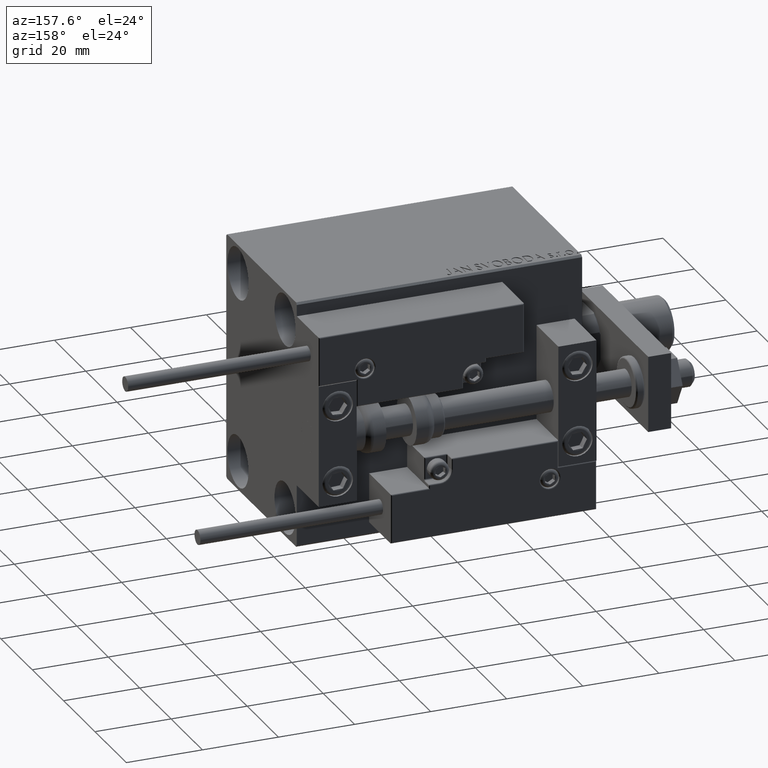
[diagram: clean part render]
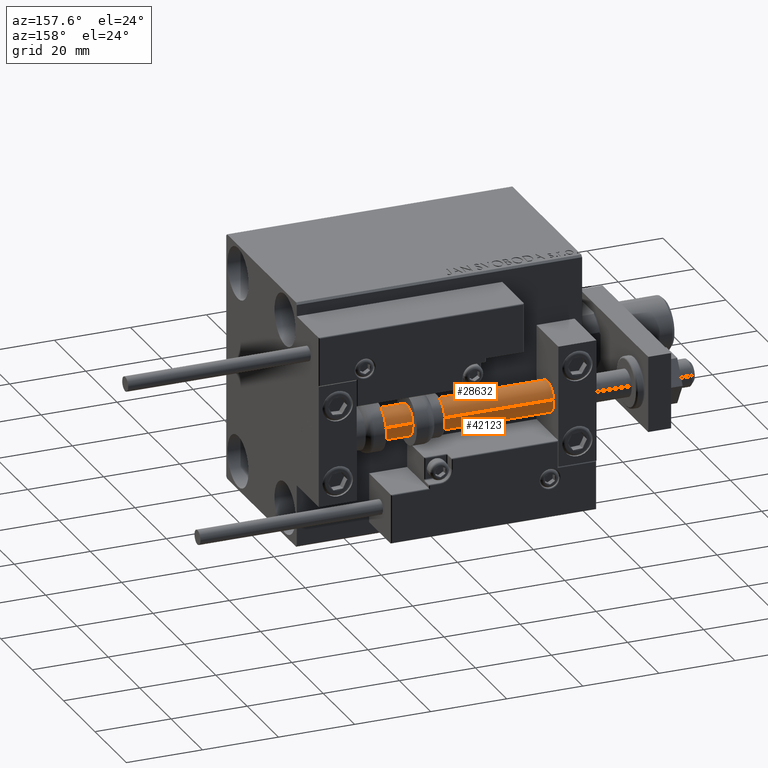
[diagram: same view with one multi-face feature highlighted, each face labeled with its STEP entity id]
A machine part, auxiliary view. The highlighted faces form ONE feature: a constant-radius fillet chain: 2 tangent blend faces with common blend radius 4 mm. The faces share edges in the B-rep.
Their STEP definitions:
[1] entity #42123 (Cylinder):
#3448 = DIRECTION ( 'NONE',  ( 1.000000000000000000, 0.000000000000000000, 0.000000000000000000 ) ) ;
#3954 = DIRECTION ( 'NONE',  ( -0.000000000000000000, -0.000000000000000000, 1.000000000000000000 ) ) ;
#4168 = VERTEX_POINT ( 'NONE', #49120 ) ;
#5979 = CYLINDRICAL_SURFACE ( 'NONE', #9482, 4.000000000000000000 ) ;
#6658 = ORIENTED_EDGE ( 'NONE', *, *, #28390, .F. ) ;
#7713 = CARTESIAN_POINT ( 'NONE',  ( -4.000000000000000000, 0.000000000000000000, 75.00000000000000000 ) ) ;
#8230 = DIRECTION ( 'NONE',  ( -0.000000000000000000, -0.000000000000000000, -1.000000000000000000 ) ) ;
#9482 = AXIS2_PLACEMENT_3D ( 'NONE', #21641, #20291, #20546 ) ;
#10101 = VECTOR ( 'NONE', #8230, 1000.000000000000000 ) ;
#11306 = CARTESIAN_POINT ( 'NONE',  ( -4.000000000000000000, 0.000000000000000000, 2.000000000000029310 ) ) ;
#12098 = LINE ( 'NONE', #7713, #10101 ) ;
#15366 = CIRCLE ( 'NONE', #47379, 4.000000000000000000 ) ;
#18832 = EDGE_LOOP ( 'NONE', ( #6658, #43300, #40815, #28547 ) ) ;
#18980 = CARTESIAN_POINT ( 'NONE',  ( 0.000000000000000000, 0.000000000000000000, 75.00000000000000000 ) ) ;
#19230 = DIRECTION ( 'NONE',  ( 1.000000000000000000, 0.000000000000000000, 0.000000000000000000 ) ) ;
#19507 = VERTEX_POINT ( 'NONE', #11306 ) ;
#20291 = DIRECTION ( 'NONE',  ( -0.000000000000000000, -0.000000000000000000, -1.000000000000000000 ) ) ;
#20546 = DIRECTION ( 'NONE',  ( -1.000000000000000000, 0.000000000000000000, 0.000000000000000000 ) ) ;
#20794 = EDGE_CURVE ( 'NONE', #50587, #19507, #12098, .T. ) ;
#21641 = CARTESIAN_POINT ( 'NONE',  ( 0.000000000000000000, 0.000000000000000000, 75.00000000000000000 ) ) ;
#22566 = VECTOR ( 'NONE', #48488, 1000.000000000000000 ) ;
#23930 = EDGE_CURVE ( 'NONE', #50587, #44798, #30592, .T. ) ;
#24059 = AXIS2_PLACEMENT_3D ( 'NONE', #18980, #46184, #19230 ) ;
#25497 = FACE_OUTER_BOUND ( 'NONE', #18832, .T. ) ;
#27543 = CARTESIAN_POINT ( 'NONE',  ( -4.000000000000000000, 0.000000000000000000, 75.00000000000000000 ) ) ;
#28390 = EDGE_CURVE ( 'NONE', #44798, #4168, #40261, .T. ) ;
#28547 = ORIENTED_EDGE ( 'NONE', *, *, #46493, .T. ) ;
#30592 = CIRCLE ( 'NONE', #24059, 4.000000000000000000 ) ;
#33854 = CARTESIAN_POINT ( 'NONE',  ( 4.000000000000000000, 4.898587196589412829E-16, 75.00000000000000000 ) ) ;
#38600 = CARTESIAN_POINT ( 'NONE',  ( 0.000000000000000000, 0.000000000000000000, 2.000000000000029310 ) ) ;
#40261 = LINE ( 'NONE', #49407, #22566 ) ;
#40815 = ORIENTED_EDGE ( 'NONE', *, *, #20794, .T. ) ;
#42123 = ADVANCED_FACE ( 'NONE', ( #25497 ), #5979, .T. ) ;
#43300 = ORIENTED_EDGE ( 'NONE', *, *, #23930, .F. ) ;
#44798 = VERTEX_POINT ( 'NONE', #33854 ) ;
#46184 = DIRECTION ( 'NONE',  ( 0.000000000000000000, 0.000000000000000000, 1.000000000000000000 ) ) ;
#46493 = EDGE_CURVE ( 'NONE', #19507, #4168, #15366, .T. ) ;
#47379 = AXIS2_PLACEMENT_3D ( 'NONE', #38600, #3954, #3448 ) ;
#48488 = DIRECTION ( 'NONE',  ( -0.000000000000000000, -0.000000000000000000, -1.000000000000000000 ) ) ;
#49120 = CARTESIAN_POINT ( 'NONE',  ( 4.000000000000000000, 4.898587196589412829E-16, 2.000000000000029310 ) ) ;
#49407 = CARTESIAN_POINT ( 'NONE',  ( 4.000000000000000000, 4.898587196589412829E-16, 75.00000000000000000 ) ) ;
#50587 = VERTEX_POINT ( 'NONE', #27543 ) ;
[2] entity #28632 (Cylinder):
#4168 = VERTEX_POINT ( 'NONE', #49120 ) ;
#5449 = CARTESIAN_POINT ( 'NONE',  ( 0.000000000000000000, 0.000000000000000000, 75.00000000000000000 ) ) ;
#6708 = CYLINDRICAL_SURFACE ( 'NONE', #50438, 4.000000000000000000 ) ;
#7713 = CARTESIAN_POINT ( 'NONE',  ( -4.000000000000000000, 0.000000000000000000, 75.00000000000000000 ) ) ;
#8230 = DIRECTION ( 'NONE',  ( -0.000000000000000000, -0.000000000000000000, -1.000000000000000000 ) ) ;
#10101 = VECTOR ( 'NONE', #8230, 1000.000000000000000 ) ;
#10561 = DIRECTION ( 'NONE',  ( -0.000000000000000000, -0.000000000000000000, -1.000000000000000000 ) ) ;
#11306 = CARTESIAN_POINT ( 'NONE',  ( -4.000000000000000000, 0.000000000000000000, 2.000000000000029310 ) ) ;
#12098 = LINE ( 'NONE', #7713, #10101 ) ;
#12599 = CIRCLE ( 'NONE', #40466, 4.000000000000000000 ) ;
#13695 = AXIS2_PLACEMENT_3D ( 'NONE', #5449, #28819, #31920 ) ;
#15193 = CARTESIAN_POINT ( 'NONE',  ( 0.000000000000000000, 0.000000000000000000, 75.00000000000000000 ) ) ;
#16815 = ORIENTED_EDGE ( 'NONE', *, *, #20409, .T. ) ;
#19507 = VERTEX_POINT ( 'NONE', #11306 ) ;
#20409 = EDGE_CURVE ( 'NONE', #4168, #19507, #12599, .T. ) ;
#20794 = EDGE_CURVE ( 'NONE', #50587, #19507, #12098, .T. ) ;
#22566 = VECTOR ( 'NONE', #48488, 1000.000000000000000 ) ;
#27543 = CARTESIAN_POINT ( 'NONE',  ( -4.000000000000000000, 0.000000000000000000, 75.00000000000000000 ) ) ;
#28379 = DIRECTION ( 'NONE',  ( -0.000000000000000000, -0.000000000000000000, 1.000000000000000000 ) ) ;
#28390 = EDGE_CURVE ( 'NONE', #44798, #4168, #40261, .T. ) ;
#28632 = ADVANCED_FACE ( 'NONE', ( #31359 ), #6708, .T. ) ;
#28819 = DIRECTION ( 'NONE',  ( 0.000000000000000000, 0.000000000000000000, 1.000000000000000000 ) ) ;
#29528 = EDGE_LOOP ( 'NONE', ( #39125, #44402, #16815, #30984 ) ) ;
#30838 = DIRECTION ( 'NONE',  ( -1.000000000000000000, 0.000000000000000000, 0.000000000000000000 ) ) ;
#30984 = ORIENTED_EDGE ( 'NONE', *, *, #20794, .F. ) ;
#31359 = FACE_OUTER_BOUND ( 'NONE', #29528, .T. ) ;
#31470 = CARTESIAN_POINT ( 'NONE',  ( 0.000000000000000000, 0.000000000000000000, 2.000000000000029310 ) ) ;
#31920 = DIRECTION ( 'NONE',  ( 1.000000000000000000, 0.000000000000000000, 0.000000000000000000 ) ) ;
#33216 = DIRECTION ( 'NONE',  ( 1.000000000000000000, 0.000000000000000000, 0.000000000000000000 ) ) ;
#33854 = CARTESIAN_POINT ( 'NONE',  ( 4.000000000000000000, 4.898587196589412829E-16, 75.00000000000000000 ) ) ;
#39125 = ORIENTED_EDGE ( 'NONE', *, *, #46597, .F. ) ;
#40261 = LINE ( 'NONE', #49407, #22566 ) ;
#40466 = AXIS2_PLACEMENT_3D ( 'NONE', #31470, #28379, #33216 ) ;
#44402 = ORIENTED_EDGE ( 'NONE', *, *, #28390, .T. ) ;
#44798 = VERTEX_POINT ( 'NONE', #33854 ) ;
#46597 = EDGE_CURVE ( 'NONE', #44798, #50587, #50627, .T. ) ;
#48488 = DIRECTION ( 'NONE',  ( -0.000000000000000000, -0.000000000000000000, -1.000000000000000000 ) ) ;
#49120 = CARTESIAN_POINT ( 'NONE',  ( 4.000000000000000000, 4.898587196589412829E-16, 2.000000000000029310 ) ) ;
#49407 = CARTESIAN_POINT ( 'NONE',  ( 4.000000000000000000, 4.898587196589412829E-16, 75.00000000000000000 ) ) ;
#50438 = AXIS2_PLACEMENT_3D ( 'NONE', #15193, #10561, #30838 ) ;
#50587 = VERTEX_POINT ( 'NONE', #27543 ) ;
#50627 = CIRCLE ( 'NONE', #13695, 4.000000000000000000 ) ;